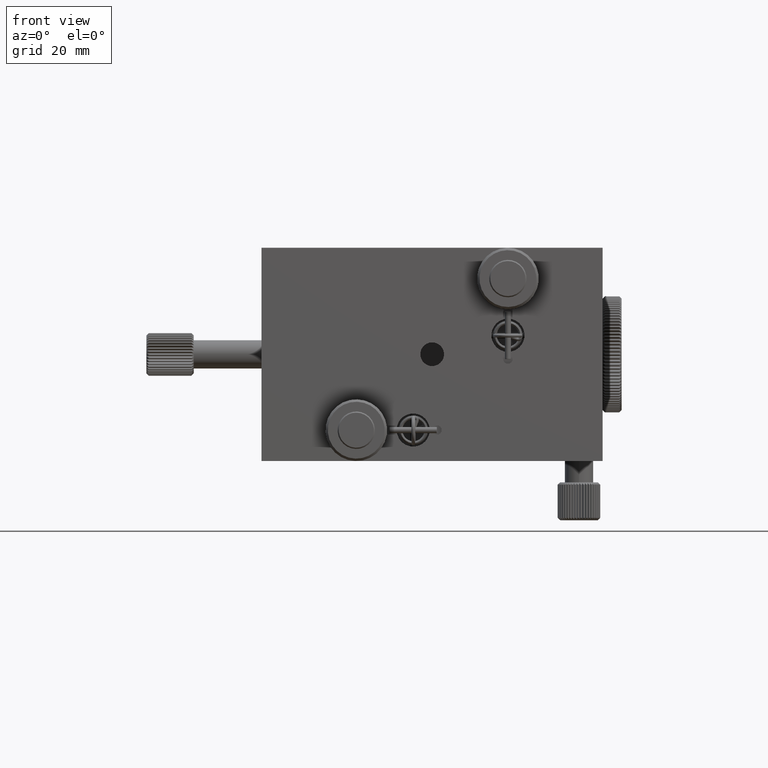
[diagram: clean part render]
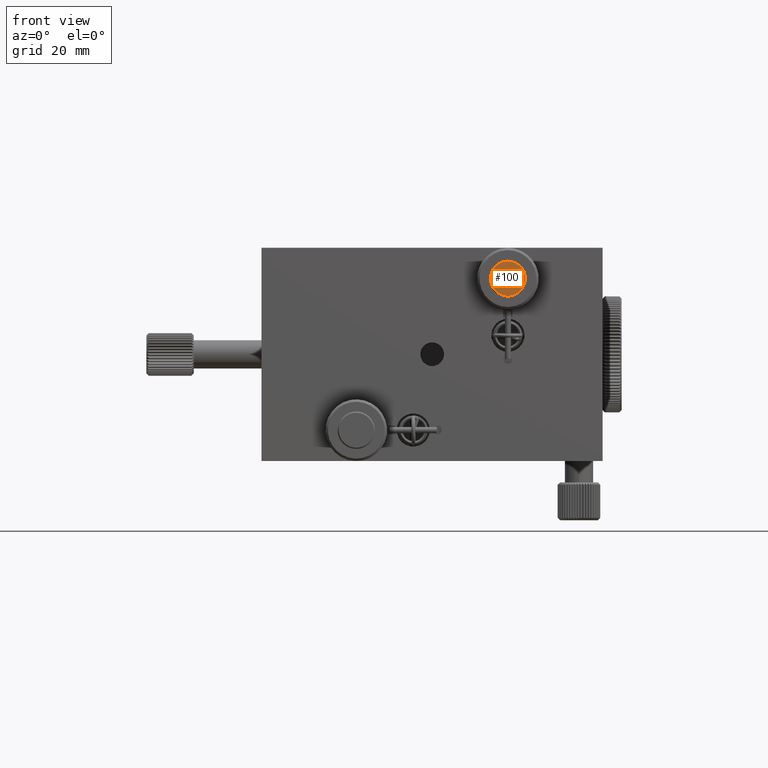
[diagram: same view with one face highlighted and labeled with its STEP entity id]
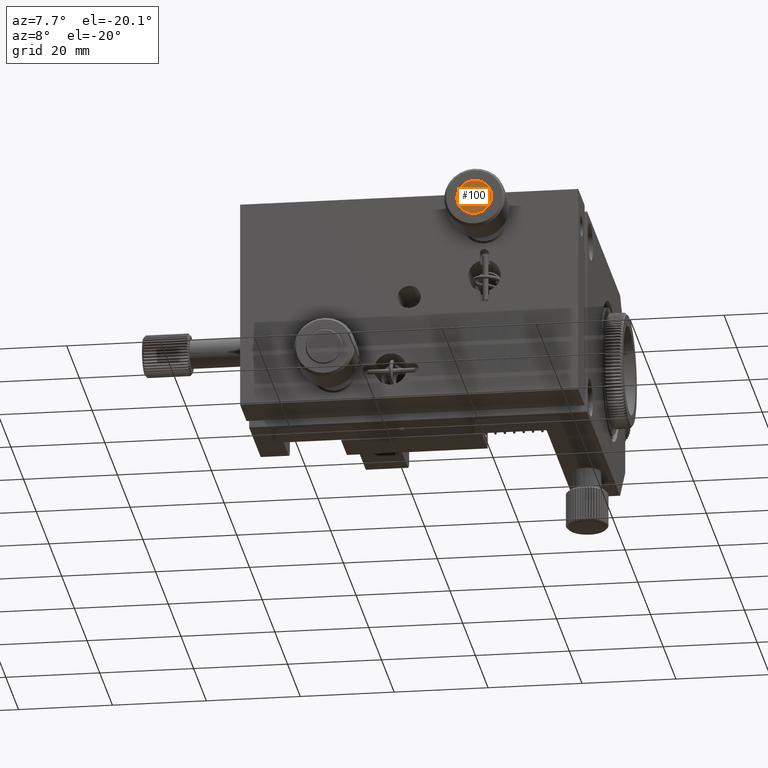
[diagram: same view with one face highlighted and labeled with its STEP entity id]
A machine part, front view. The second image highlights one B-rep face of the part: STEP entity #100.
A second angle (auxiliary view) of the same face is appended — the face is thin or edge-on in the first view.
In plain terms, the highlighted planar face has unit normal (-0, -1, -0).
Its self-contained STEP definition (entity closure, byte-faithful):
#100 = ADVANCED_FACE ( 'NONE', ( #10994 ), #952, .T. ) ;
#952 = PLANE ( 'NONE',  #53188 ) ;
#5687 = DIRECTION ( 'NONE',  ( 0.9263870546132796400, 0.0000000000000000000, 0.3765727353977348400 ) ) ;
#5901 = CARTESIAN_POINT ( 'NONE',  ( 17.99999999999992200, -34.80000000000001100, 16.00000000000000700 ) ) ;
#7473 = CARTESIAN_POINT ( 'NONE',  ( 17.99999999999992200, -34.80000000000001100, 16.00000000000000700 ) ) ;
#8188 = ORIENTED_EDGE ( 'NONE', *, *, #27800, .T. ) ;
#10994 = FACE_OUTER_BOUND ( 'NONE', #63613, .T. ) ;
#15357 = DIRECTION ( 'NONE',  ( -3.469446951953617600E-016, -1.000000000000000000, -1.209268137318283700E-016 ) ) ;
#17423 = AXIS2_PLACEMENT_3D ( 'NONE', #5901, #30930, #5687 ) ;
#17971 = DIRECTION ( 'NONE',  ( -3.469446951953611700E-016, -1.000000000000000000, -1.209268137318281300E-016 ) ) ;
#22001 = VERTEX_POINT ( 'NONE', #23137 ) ;
#23137 = CARTESIAN_POINT ( 'NONE',  ( 14.57236789793078600, -34.80000000000001100, 14.60668087902838700 ) ) ;
#25568 = DIRECTION ( 'NONE',  ( 0.9263870546132795300, -3.669428153256601600E-016, 0.3765727353977350600 ) ) ;
#26221 = CARTESIAN_POINT ( 'NONE',  ( 17.99999999999992200, -34.80000000000001100, 16.00000000000000700 ) ) ;
#27800 = EDGE_CURVE ( 'NONE', #22001, #59895, #43564, .T. ) ;
#30930 = DIRECTION ( 'NONE',  ( -3.469446951953611700E-016, -1.000000000000000000, -1.209268137318281300E-016 ) ) ;
#33124 = DIRECTION ( 'NONE',  ( 0.9263870546132796400, 0.0000000000000000000, 0.3765727353977348400 ) ) ;
#36165 = ORIENTED_EDGE ( 'NONE', *, *, #62857, .T. ) ;
#43564 = CIRCLE ( 'NONE', #17423, 3.699999999999999700 ) ;
#50062 = CIRCLE ( 'NONE', #56157, 3.699999999999999700 ) ;
#52486 = CARTESIAN_POINT ( 'NONE',  ( 21.42763210206905800, -34.80000000000001100, 17.39331912097162600 ) ) ;
#53188 = AXIS2_PLACEMENT_3D ( 'NONE', #26221, #15357, #25568 ) ;
#56157 = AXIS2_PLACEMENT_3D ( 'NONE', #7473, #17971, #33124 ) ;
#59895 = VERTEX_POINT ( 'NONE', #52486 ) ;
#62857 = EDGE_CURVE ( 'NONE', #59895, #22001, #50062, .T. ) ;
#63613 = EDGE_LOOP ( 'NONE', ( #8188, #36165 ) ) ;